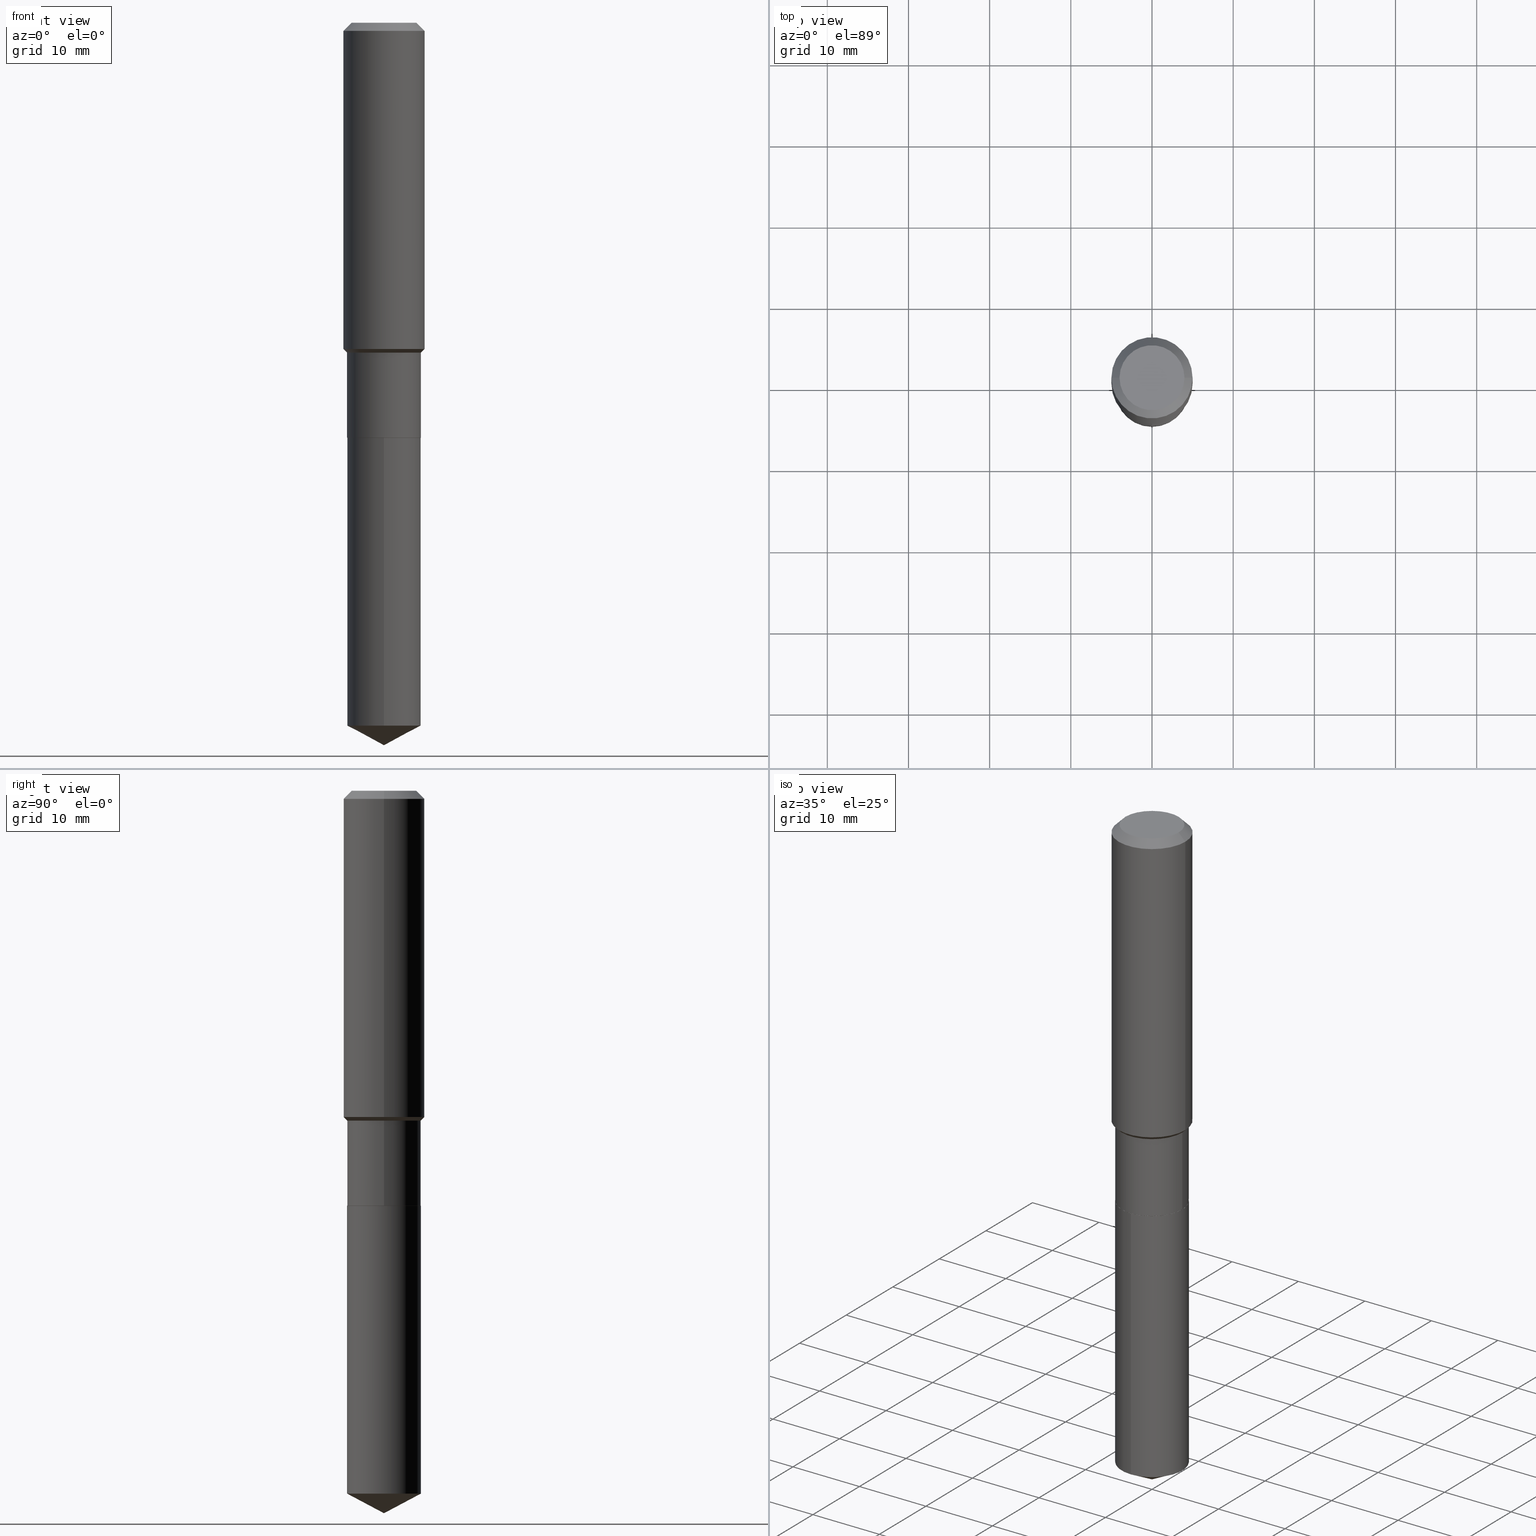
[diagram: canonical four-view strip — front | top / right | iso, engineering-drawing reading convention]
A machine part, canonical four-view strip (front | top / right | iso — engineering-drawing reading convention). The complete STEP part file that produces these views, byte-faithful:
ISO-10303-21;
HEADER;
FILE_DESCRIPTION (( 'STEP AP203' ),
    '1' );
FILE_NAME ('64661.STEP',
    '2024-04-24T18:38:48',
    ( '' ),
    ( '' ),
    'SwSTEP 2.0',
    'SolidWorks 2023',
    '' );
FILE_SCHEMA (( 'CONFIG_CONTROL_DESIGN' ));
ENDSEC;

DATA;
#1 = ORIENTED_EDGE ( 'NONE', *, *, #278, .F. ) ;
#2 = CYLINDRICAL_SURFACE ( 'NONE', #41, 0.1791500000000000314 ) ;
#3 = ORIENTED_EDGE ( 'NONE', *, *, #61, .F. ) ;
#4 = DIRECTION ( 'NONE',  ( -0.7071067811868372299, 7.493145998871401767E-15, 0.7071067811862578045 ) ) ;
#5 = CARTESIAN_POINT ( 'NONE',  ( -0.1968500000000002192, -4.125169250839980741E-15, -1.582099999999999840 ) ) ;
#6 = CIRCLE ( 'NONE', #414, 0.1968500000000002192 ) ;
#7 = AXIS2_PLACEMENT_3D ( 'NONE', #326, #462, #388 ) ;
#8 = VERTEX_POINT ( 'NONE', #206 ) ;
#9 = EDGE_CURVE ( 'NONE', #351, #185, #6, .T. ) ;
#10 = DIRECTION ( 'NONE',  ( 1.000000000000000000, -6.982962677686266711E-15, 4.876176775795935793E-29 ) ) ;
#11 = CARTESIAN_POINT ( 'NONE',  ( 3.912260996134981658E-29, -5.585671845881263700E-15, -1.599799999999999889 ) ) ;
#12 = DIRECTION ( 'NONE',  ( 0.7071067811865450192, -7.319954787623246579E-15, -0.7071067811865500152 ) ) ;
#13 = DIRECTION ( 'NONE',  ( -0.7071067811865482389, 7.493145998870357316E-15, 0.7071067811865467956 ) ) ;
#14 = AXIS2_PLACEMENT_3D ( 'NONE', #429, #324, #79 ) ;
#15 = VERTEX_POINT ( 'NONE', #245 ) ;
#16 =( GEOMETRIC_REPRESENTATION_CONTEXT ( 3 ) GLOBAL_UNCERTAINTY_ASSIGNED_CONTEXT ( ( #405 ) ) GLOBAL_UNIT_ASSIGNED_CONTEXT ( ( #35, #357, #373 ) ) REPRESENTATION_CONTEXT ( 'NONE', 'WORKASPACE' ) );
#17 = DIRECTION ( 'NONE',  ( -2.445468806185136597E-29, 3.491481338843145583E-15, 1.000000000000000000 ) ) ;
#18 = ORIENTED_EDGE ( 'NONE', *, *, #219, .T. ) ;
#19 = CARTESIAN_POINT ( 'NONE',  ( 7.068010578327116673E-29, -3.947793955047603297E-15, -2.011799999999999589 ) ) ;
#20 = LENGTH_MEASURE_WITH_UNIT ( LENGTH_MEASURE( 0.02539999999999999897 ), #253 );
#21 = ADVANCED_FACE ( 'NONE', ( #128 ), #204, .T. ) ;
#22 = CALENDAR_DATE ( 2024, 24, 4 ) ;
#23 = EDGE_CURVE ( 'NONE', #15, #421, #134, .T. ) ;
#24 = APPLICATION_PROTOCOL_DEFINITION ( 'international standard', 'config_control_design', 1994, #366 ) ;
#25 = CIRCLE ( 'NONE', #56, 0.1791500000000000592 ) ;
#26 = LOCAL_TIME ( 14, 38, 48.00000000000000000, #145 ) ;
#27 = VERTEX_POINT ( 'NONE', #322 ) ;
#28 = DIRECTION ( 'NONE',  ( 1.000000000000000000, 0.000000000000000000, 0.000000000000000000 ) ) ;
#29 = EDGE_CURVE ( 'NONE', #489, #282, #63, .T. ) ;
#30 = ORIENTED_EDGE ( 'NONE', *, *, #293, .F. ) ;
#31 = ORIENTED_EDGE ( 'NONE', *, *, #61, .T. ) ;
#32 = VECTOR ( 'NONE', #246, 39.37007874015748143 ) ;
#33 = ORIENTED_EDGE ( 'NONE', *, *, #273, .F. ) ;
#34 = DIRECTION ( 'NONE',  ( -6.982962677686269077E-15, -1.000000000000000000, 3.541896320645582562E-15 ) ) ;
#35 =( CONVERSION_BASED_UNIT ( 'INCH', #20 ) LENGTH_UNIT ( ) NAMED_UNIT ( #309 ) );
#36 = EDGE_LOOP ( 'NONE', ( #427, #196 ) ) ;
#37 = CC_DESIGN_DATE_AND_TIME_ASSIGNMENT ( #295, #215, ( #45 ) ) ;
#38 = FACE_OUTER_BOUND ( 'NONE', #270, .T. ) ;
#39 = ORIENTED_EDGE ( 'NONE', *, *, #227, .T. ) ;
#40 = EDGE_CURVE ( 'NONE', #132, #418, #356, .T. ) ;
#41 = AXIS2_PLACEMENT_3D ( 'NONE', #313, #456, #131 ) ;
#42 = DIRECTION ( 'NONE',  ( -2.445568839554977058E-29, 3.491338085363987915E-15, 1.000000000000000000 ) ) ;
#43 = DIRECTION ( 'NONE',  ( -2.445468806185136597E-29, 3.491481338843145583E-15, 1.000000000000000000 ) ) ;
#44 = PRODUCT_DEFINITION_SHAPE ( 'NONE', 'NONE',  #45 ) ;
#45 = PRODUCT_DEFINITION ( 'UNKNOWN', '', #365, #261 ) ;
#46 = CARTESIAN_POINT ( 'NONE',  ( -0.1791499999999999759, -4.312734534767044782E-15, -1.599799999999999889 ) ) ;
#47 = ORIENTED_EDGE ( 'NONE', *, *, #194, .T. ) ;
#48 = ORIENTED_EDGE ( 'NONE', *, *, #260, .T. ) ;
#49 = DIRECTION ( 'NONE',  ( 1.000000000000000000, -6.982962677686265922E-15, 4.876223630392693006E-29 ) ) ;
#50 = CARTESIAN_POINT ( 'NONE',  ( 8.335872928799957267E-29, -1.190101770539773330E-14, -3.408644255317845762 ) ) ;
#51 = ORIENTED_EDGE ( 'NONE', *, *, #227, .F. ) ;
#52 = DIRECTION ( 'NONE',  ( -2.445568839554976778E-29, 3.491338085363988309E-15, 1.000000000000000000 ) ) ;
#53 = DIRECTION ( 'NONE',  ( 1.000000000000000000, -6.982962677686269866E-15, 0.000000000000000000 ) ) ;
#54 = CALENDAR_DATE ( 2024, 24, 4 ) ;
#55 = EDGE_CURVE ( 'NONE', #185, #351, #391, .T. ) ;
#56 = AXIS2_PLACEMENT_3D ( 'NONE', #110, #153, #114 ) ;
#57 = DATE_TIME_ROLE ( 'classification_date' ) ;
#58 = PERSON_AND_ORGANIZATION ( #420, #323 ) ;
#59 = DIRECTION ( 'NONE',  ( -1.000000000000000000, 6.982962677686265922E-15, 0.000000000000000000 ) ) ;
#60 = ORIENTED_EDGE ( 'NONE', *, *, #105, .T. ) ;
#61 = EDGE_CURVE ( 'NONE', #305, #372, #392, .T. ) ;
#62 = PERSON_AND_ORGANIZATION ( #420, #323 ) ;
#63 = CIRCLE ( 'NONE', #168, 0.1791499999999999759 ) ;
#64 = CONICAL_SURFACE ( 'NONE', #481, 0.1791499999999999759, 0.7853981633974492782 ) ;
#65 = ORIENTED_EDGE ( 'NONE', *, *, #470, .F. ) ;
#66 = EDGE_LOOP ( 'NONE', ( #447, #342, #263, #201 ) ) ;
#67 = DIRECTION ( 'NONE',  ( -2.445468806185136877E-29, 3.491481338843145188E-15, 1.000000000000000000 ) ) ;
#68 = CARTESIAN_POINT ( 'NONE',  ( 0.1791500000000000314, -1.250997763707495014E-15, 8.735670693838419573E-30 ) ) ;
#69 = ORIENTED_EDGE ( 'NONE', *, *, #155, .F. ) ;
#70 = VECTOR ( 'NONE', #166, 39.37007874015748143 ) ;
#71 = VECTOR ( 'NONE', #380, 39.37007874015748143 ) ;
#72 = CC_DESIGN_PERSON_AND_ORGANIZATION_ASSIGNMENT ( #58, #179, ( #200 ) ) ;
#73 = ORIENTED_EDGE ( 'NONE', *, *, #332, .T. ) ;
#74 = FACE_OUTER_BOUND ( 'NONE', #66, .T. ) ;
#75 = DIRECTION ( 'NONE',  ( -6.165590087286826563E-15, -0.8829475928589252121, 0.4694715627858941365 ) ) ;
#76 = LINE ( 'NONE', #281, #70 ) ;
#77 = ORIENTED_EDGE ( 'NONE', *, *, #55, .F. ) ;
#78 = ADVANCED_FACE ( 'NONE', ( #163 ), #241, .T. ) ;
#79 = DIRECTION ( 'NONE',  ( 1.000000000000000000, -6.982962677686265922E-15, 0.000000000000000000 ) ) ;
#80 = DIRECTION ( 'NONE',  ( -2.445468806185136597E-29, 3.491481338843145583E-15, 1.000000000000000000 ) ) ;
#81 = ADVANCED_FACE ( 'NONE', ( #343 ), #225, .T. ) ;
#82 = DIRECTION ( 'NONE',  ( 1.000000000000000000, -6.982962677686269866E-15, 0.000000000000000000 ) ) ;
#83 = EDGE_LOOP ( 'NONE', ( #33, #455, #231, #400 ) ) ;
#84 = DIRECTION ( 'NONE',  ( -2.445468806185136597E-29, 3.491481338843145583E-15, 1.000000000000000000 ) ) ;
#85 = ORIENTED_EDGE ( 'NONE', *, *, #252, .F. ) ;
#86 = FACE_OUTER_BOUND ( 'NONE', #36, .T. ) ;
#87 = EDGE_CURVE ( 'NONE', #185, #27, #302, .T. ) ;
#88 = AXIS2_PLACEMENT_3D ( 'NONE', #50, #164, #209 ) ;
#89 = AXIS2_PLACEMENT_3D ( 'NONE', #192, #277, #318 ) ;
#90 = CYLINDRICAL_SURFACE ( 'NONE', #89, 0.1791500000000000314 ) ;
#91 = ADVANCED_FACE ( 'NONE', ( #233 ), #364, .T. ) ;
#92 = DATE_AND_TIME ( #22, #26 ) ;
#93 = DIRECTION ( 'NONE',  ( 1.000000000000000000, -6.982962677686265922E-15, 4.876223630392693006E-29 ) ) ;
#94 = ADVANCED_BREP_SHAPE_REPRESENTATION ( '64661', ( #484, #475, #135 ), #16 ) ;
#95 = VECTOR ( 'NONE', #409, 39.37007874015748143 ) ;
#96 = AXIS2_PLACEMENT_3D ( 'NONE', #423, #103, #228 ) ;
#97 = PERSON_AND_ORGANIZATION ( #420, #323 ) ;
#98 = CARTESIAN_POINT ( 'NONE',  ( 9.627810689950954155E-31, -1.374596203102556547E-16, -0.03937000000000029365 ) ) ;
#99 = PERSON_AND_ORGANIZATION ( #420, #323 ) ;
#100 = CARTESIAN_POINT ( 'NONE',  ( -0.1968500000000000250, -1.431962747903239464E-15, -0.03937000000000029365 ) ) ;
#101 = ORIENTED_EDGE ( 'NONE', *, *, #238, .T. ) ;
#102 = PERSON_AND_ORGANIZATION ( #420, #323 ) ;
#103 = DIRECTION ( 'NONE',  ( -2.445568839554976778E-29, 3.491338085363988309E-15, 1.000000000000000000 ) ) ;
#104 = CARTESIAN_POINT ( 'NONE',  ( 8.335872928799957267E-29, -1.190101770539773330E-14, -3.408644255317845762 ) ) ;
#105 = EDGE_CURVE ( 'NONE', #421, #132, #230, .T. ) ;
#106 = EDGE_LOOP ( 'NONE', ( #3, #378, #375 ) ) ;
#107 = CARTESIAN_POINT ( 'NONE',  ( 0.1968500000000001082, -1.374596203102542397E-15, 9.598753983154305062E-30 ) ) ;
#108 = VECTOR ( 'NONE', #12, 39.37007874015748143 ) ;
#109 = SECURITY_CLASSIFICATION ( '', '', #255 ) ;
#110 = CARTESIAN_POINT ( 'NONE',  ( 4.918571409880165014E-29, -7.022416416815218724E-15, -2.011299999999999866 ) ) ;
#111 = ORIENTED_EDGE ( 'NONE', *, *, #23, .F. ) ;
#112 = DIRECTION ( 'NONE',  ( -2.445568839554976778E-29, 3.491338085363988309E-15, 1.000000000000000000 ) ) ;
#113 = ADVANCED_FACE ( 'NONE', ( #124 ), #461, .F. ) ;
#114 = DIRECTION ( 'NONE',  ( 1.000000000000000000, -6.982962677686265922E-15, 0.000000000000000000 ) ) ;
#115 = ORIENTED_EDGE ( 'NONE', *, *, #360, .T. ) ;
#116 = CARTESIAN_POINT ( 'NONE',  ( -0.1968500000000000250, 1.237136582792286225E-15, -0.03937000000000029365 ) ) ;
#117 = EDGE_LOOP ( 'NONE', ( #354, #101, #73, #130 ) ) ;
#118 = CARTESIAN_POINT ( 'NONE',  ( -0.1786500000000000310, -5.754777560049219842E-15, -2.011799999999999589 ) ) ;
#119 = VECTOR ( 'NONE', #13, 39.37007874015748143 ) ;
#120 = VECTOR ( 'NONE', #184, 39.37007874015748143 ) ;
#121 = PLANE ( 'NONE',  #141 ) ;
#122 = ADVANCED_FACE ( 'NONE', ( #271 ), #458, .T. ) ;
#123 = EDGE_LOOP ( 'NONE', ( #65, #488, #316, #162 ) ) ;
#124 = FACE_OUTER_BOUND ( 'NONE', #449, .T. ) ;
#125 = DIRECTION ( 'NONE',  ( -2.438088387897960049E-29, 3.491481338843145188E-15, 1.000000000000000000 ) ) ;
#126 = PRODUCT_RELATED_PRODUCT_CATEGORY ( 'detail', '', ( #200 ) ) ;
#127 = DIRECTION ( 'NONE',  ( -2.445468806185136597E-29, 3.491481338843145583E-15, 1.000000000000000000 ) ) ;
#128 = FACE_OUTER_BOUND ( 'NONE', #83, .T. ) ;
#129 = AXIS2_PLACEMENT_3D ( 'NONE', #104, #411, #487 ) ;
#130 = ORIENTED_EDGE ( 'NONE', *, *, #40, .F. ) ;
#131 = DIRECTION ( 'NONE',  ( 1.000000000000000000, -6.982962677686267499E-15, 4.876176775795935232E-29 ) ) ;
#132 = VERTEX_POINT ( 'NONE', #419 ) ;
#133 = ADVANCED_FACE ( 'NONE', ( #275 ), #413, .T. ) ;
#134 = CIRCLE ( 'NONE', #283, 0.1786500000000000310 ) ;
#135 = AXIS2_PLACEMENT_3D ( 'NONE', #299, #408, #28 ) ;
#136 = CARTESIAN_POINT ( 'NONE',  ( 0.1791499999999999759, -6.836669609588758911E-15, -1.599799999999999889 ) ) ;
#137 = PERSON_AND_ORGANIZATION_ROLE ( 'design_supplier' ) ;
#138 = CARTESIAN_POINT ( 'NONE',  ( -0.1791499999999999759, -5.031106820234021505E-15, -1.599799999999999889 ) ) ;
#139 = APPLICATION_PROTOCOL_DEFINITION ( 'international standard', 'config_control_design', 1994, #211 ) ;
#140 = AXIS2_PLACEMENT_3D ( 'NONE', #150, #450, #183 ) ;
#141 = AXIS2_PLACEMENT_3D ( 'NONE', #19, #125, #385 ) ;
#142 = PERSON_AND_ORGANIZATION_ROLE ( 'creator' ) ;
#143 = EDGE_CURVE ( 'NONE', #146, #170, #308, .T. ) ;
#144 = FACE_OUTER_BOUND ( 'NONE', #319, .T. ) ;
#145 = COORDINATED_UNIVERSAL_TIME_OFFSET ( 5, 0, .BEHIND. ) ;
#146 = VERTEX_POINT ( 'NONE', #348 ) ;
#147 = CARTESIAN_POINT ( 'NONE',  ( -8.771341036797175977E-28, 1.252206676146346335E-13, 35.86617874015747987 ) ) ;
#148 = DIRECTION ( 'NONE',  ( -2.445568839554977058E-29, 3.491338085363987915E-15, 1.000000000000000000 ) ) ;
#149 = ADVANCED_FACE ( 'NONE', ( #74 ), #2, .T. ) ;
#150 = CARTESIAN_POINT ( 'NONE',  ( 4.919794144283257255E-29, -7.024162157484639438E-15, -2.011800000000000033 ) ) ;
#151 = APPROVAL_PERSON_ORGANIZATION ( #217, #197, #367 ) ;
#152 = LINE ( 'NONE', #68, #71 ) ;
#153 = DIRECTION ( 'NONE',  ( -2.445468806185136597E-29, 3.491481338843145583E-15, 1.000000000000000000 ) ) ;
#154 = ORIENTED_EDGE ( 'NONE', *, *, #202, .F. ) ;
#155 = EDGE_CURVE ( 'NONE', #346, #27, #428, .T. ) ;
#156 = CARTESIAN_POINT ( 'NONE',  ( 3.912260996134981658E-29, -5.585671845881263700E-15, -1.599799999999999889 ) ) ;
#157 = EDGE_LOOP ( 'NONE', ( #383, #235, #85, #325 ) ) ;
#158 = DIRECTION ( 'NONE',  ( 0.7071067811865482389, -2.468850131082264555E-15, 0.7071067811865467956 ) ) ;
#159 = DIRECTION ( 'NONE',  ( 2.445468806185136597E-29, -3.491481338843145583E-15, -1.000000000000000000 ) ) ;
#160 = CIRCLE ( 'NONE', #304, 0.1574800000000000089 ) ;
#161 = CYLINDRICAL_SURFACE ( 'NONE', #472, 0.1791500000000000314 ) ;
#162 = ORIENTED_EDGE ( 'NONE', *, *, #143, .F. ) ;
#163 = FACE_OUTER_BOUND ( 'NONE', #463, .T. ) ;
#164 = DIRECTION ( 'NONE',  ( -2.445568839554976778E-29, 3.491338085363988309E-15, 1.000000000000000000 ) ) ;
#165 = DIRECTION ( 'NONE',  ( -2.445468806185136597E-29, 3.491481338843145583E-15, 1.000000000000000000 ) ) ;
#166 = DIRECTION ( 'NONE',  ( -2.445468806185136877E-29, 3.491481338843145188E-15, 1.000000000000000000 ) ) ;
#167 = ORIENTED_EDGE ( 'NONE', *, *, #332, .F. ) ;
#168 = AXIS2_PLACEMENT_3D ( 'NONE', #11, #165, #82 ) ;
#169 = DIRECTION ( 'NONE',  ( -2.445468806185136597E-29, 3.491481338843145583E-15, 1.000000000000000000 ) ) ;
#170 = VERTEX_POINT ( 'NONE', #100 ) ;
#171 = FACE_OUTER_BOUND ( 'NONE', #247, .T. ) ;
#172 = CARTESIAN_POINT ( 'NONE',  ( 0.000000000000000000, 0.000000000000000000, 0.000000000000000000 ) ) ;
#173 = AXIS2_PLACEMENT_3D ( 'NONE', #454, #112, #34 ) ;
#174 = CIRCLE ( 'NONE', #96, 0.1791500000000000314 ) ;
#175 = APPROVAL_DATE_TIME ( #333, #205 ) ;
#176 = APPROVAL_DATE_TIME ( #220, #197 ) ;
#177 = AXIS2_PLACEMENT_3D ( 'NONE', #424, #486, #350 ) ;
#178 = CONICAL_SURFACE ( 'NONE', #371, 74.04434902938308483, 1.082104136236484049 ) ;
#179 = PERSON_AND_ORGANIZATION_ROLE ( 'design_owner' ) ;
#180 = APPROVAL_STATUS ( 'not_yet_approved' ) ;
#181 = DIRECTION ( 'NONE',  ( -2.445468806185136597E-29, 3.491481338843145583E-15, 1.000000000000000000 ) ) ;
#182 = ORIENTED_EDGE ( 'NONE', *, *, #395, .T. ) ;
#183 = DIRECTION ( 'NONE',  ( 6.982962677686265922E-15, 1.000000000000000000, -3.491338085363987915E-15 ) ) ;
#184 = DIRECTION ( 'NONE',  ( 0.7071067811868372299, -2.468850131085291414E-15, 0.7071067811862578045 ) ) ;
#185 = VERTEX_POINT ( 'NONE', #345 ) ;
#186 = DIRECTION ( 'NONE',  ( 1.000000000000000000, -6.982962677686263555E-15, 0.000000000000000000 ) ) ;
#187 = VECTOR ( 'NONE', #191, 39.37007874015748143 ) ;
#188 = CIRCLE ( 'NONE', #199, 0.1968500000000000250 ) ;
#189 = CARTESIAN_POINT ( 'NONE',  ( 0.1574800000000000089, -1.284169937930321189E-15, 3.855188123724205385E-18 ) ) ;
#190 = ORIENTED_EDGE ( 'NONE', *, *, #293, .T. ) ;
#191 = DIRECTION ( 'NONE',  ( -0.7071067811865450192, 2.468850131082230634E-15, -0.7071067811865500152 ) ) ;
#192 = CARTESIAN_POINT ( 'NONE',  ( 4.919794144283257255E-29, -7.024162157484639438E-15, -2.011800000000000033 ) ) ;
#193 = VERTEX_POINT ( 'NONE', #311 ) ;
#194 = EDGE_CURVE ( 'NONE', #8, #372, #381, .T. ) ;
#195 = DIRECTION ( 'NONE',  ( 1.000000000000000000, -6.982962677686269866E-15, 0.000000000000000000 ) ) ;
#196 = ORIENTED_EDGE ( 'NONE', *, *, #470, .T. ) ;
#197 = APPROVAL ( #259, 'UNSPECIFIED' ) ;
#198 = AXIS2_PLACEMENT_3D ( 'NONE', #98, #337, #59 ) ;
#199 = AXIS2_PLACEMENT_3D ( 'NONE', #236, #329, #438 ) ;
#200 = PRODUCT ( '64661', '64661', '', ( #444 ) ) ;
#201 = ORIENTED_EDGE ( 'NONE', *, *, #395, .F. ) ;
#202 = EDGE_CURVE ( 'NONE', #372, #193, #265, .T. ) ;
#203 = LINE ( 'NONE', #467, #296 ) ;
#204 = CYLINDRICAL_SURFACE ( 'NONE', #291, 0.1968500000000001082 ) ;
#205 = APPROVAL ( #180, 'UNSPECIFIED' ) ;
#206 = CARTESIAN_POINT ( 'NONE',  ( -1.250997763707411198E-15, -0.1791500000000119386, -3.408644255317845317 ) ) ;
#207 = CARTESIAN_POINT ( 'NONE',  ( 1.272937311114302931E-15, 0.1791499999999880965, -3.408644255317846206 ) ) ;
#208 = CIRCLE ( 'NONE', #474, 0.1791500000000000314 ) ;
#209 = DIRECTION ( 'NONE',  ( -6.982962677686265133E-15, -1.000000000000000000, 3.049788438363675772E-15 ) ) ;
#210 = ORIENTED_EDGE ( 'NONE', *, *, #387, .T. ) ;
#211 = APPLICATION_CONTEXT ( 'configuration controlled 3d designs of mechanical parts and assemblies' ) ;
#212 = CARTESIAN_POINT ( 'NONE',  ( -1.250997763707445513E-15, -0.1791500000000070536, -2.011799999999999145 ) ) ;
#213 = DIRECTION ( 'NONE',  ( -2.445468806185136597E-29, 3.491481338843145583E-15, 1.000000000000000000 ) ) ;
#214 = CC_DESIGN_PERSON_AND_ORGANIZATION_ASSIGNMENT ( #99, #368, ( #109 ) ) ;
#215 = DATE_TIME_ROLE ( 'creation_date' ) ;
#216 = CC_DESIGN_SECURITY_CLASSIFICATION ( #109, ( #365 ) ) ;
#217 = PERSON_AND_ORGANIZATION ( #420, #323 ) ;
#218 = DIRECTION ( 'NONE',  ( -2.445468806185136597E-29, 3.491481338843145583E-15, 1.000000000000000000 ) ) ;
#219 = EDGE_CURVE ( 'NONE', #418, #132, #25, .T. ) ;
#220 = DATE_AND_TIME ( #479, #433 ) ;
#221 = CC_DESIGN_PERSON_AND_ORGANIZATION_ASSIGNMENT ( #476, #142, ( #45 ) ) ;
#222 = APPROVAL_STATUS ( 'not_yet_approved' ) ;
#223 = ORIENTED_EDGE ( 'NONE', *, *, #219, .F. ) ;
#224 = CONICAL_SURFACE ( 'NONE', #198, 0.1968500000000000250, 0.7853981633974447263 ) ;
#225 = CYLINDRICAL_SURFACE ( 'NONE', #177, 0.1791500000000000314 ) ;
#226 = DATE_AND_TIME ( #410, #393 ) ;
#227 = EDGE_CURVE ( 'NONE', #282, #351, #315, .T. ) ;
#228 = DIRECTION ( 'NONE',  ( -6.982962677686265133E-15, -1.000000000000000000, 3.049788438363675772E-15 ) ) ;
#229 = ORIENTED_EDGE ( 'NONE', *, *, #202, .T. ) ;
#230 = LINE ( 'NONE', #118, #451 ) ;
#231 = ORIENTED_EDGE ( 'NONE', *, *, #87, .T. ) ;
#232 = ORIENTED_EDGE ( 'NONE', *, *, #242, .T. ) ;
#233 = FACE_OUTER_BOUND ( 'NONE', #123, .T. ) ;
#234 = CIRCLE ( 'NONE', #14, 0.1968500000000000250 ) ;
#235 = ORIENTED_EDGE ( 'NONE', *, *, #273, .T. ) ;
#236 = CARTESIAN_POINT ( 'NONE',  ( 9.627810689950954155E-31, -1.374596203102556547E-16, -0.03937000000000029365 ) ) ;
#237 = DIRECTION ( 'NONE',  ( -2.445468806185136597E-29, 3.491481338843145583E-15, 1.000000000000000000 ) ) ;
#238 = EDGE_CURVE ( 'NONE', #421, #15, #465, .T. ) ;
#239 = DIRECTION ( 'NONE',  ( 1.000000000000000000, -6.982962677686265922E-15, 0.000000000000000000 ) ) ;
#240 = CARTESIAN_POINT ( 'NONE',  ( 0.1968500000000000250, -1.487948651171581601E-15, -0.03937000000000029365 ) ) ;
#241 = CONICAL_SURFACE ( 'NONE', #471, 0.1786500000000000310, 0.7853981633978580623 ) ;
#242 = EDGE_CURVE ( 'NONE', #132, #282, #244, .T. ) ;
#243 = VECTOR ( 'NONE', #75, 39.37007874015748854 ) ;
#244 = LINE ( 'NONE', #426, #32 ) ;
#245 = CARTESIAN_POINT ( 'NONE',  ( 0.1786500000000000310, -8.271668439853290854E-15, -2.011799999999999589 ) ) ;
#246 = DIRECTION ( 'NONE',  ( -2.445468806185136877E-29, 3.491481338843145188E-15, 1.000000000000000000 ) ) ;
#247 = EDGE_LOOP ( 'NONE', ( #51, #182, #210, #320 ) ) ;
#248 = CARTESIAN_POINT ( 'NONE',  ( 4.919794144283257255E-29, -7.024162157484639438E-15, -2.011800000000000033 ) ) ;
#249 = DIRECTION ( 'NONE',  ( -2.445468806185136597E-29, 3.491481338843145583E-15, 1.000000000000000000 ) ) ;
#250 = PLANE ( 'NONE',  #7 ) ;
#251 = LOCAL_TIME ( 14, 38, 48.00000000000000000, #254 ) ;
#252 = EDGE_CURVE ( 'NONE', #27, #170, #234, .T. ) ;
#253 =( LENGTH_UNIT ( ) NAMED_UNIT ( * ) SI_UNIT ( $, .METRE. ) );
#254 = COORDINATED_UNIVERSAL_TIME_OFFSET ( 5, 0, .BEHIND. ) ;
#255 = SECURITY_CLASSIFICATION_LEVEL ( 'unclassified' ) ;
#256 = AXIS2_PLACEMENT_3D ( 'NONE', #321, #169, #398 ) ;
#257 = FACE_OUTER_BOUND ( 'NONE', #468, .T. ) ;
#258 = CIRCLE ( 'NONE', #284, 0.1791499999999999759 ) ;
#259 = APPROVAL_STATUS ( 'not_yet_approved' ) ;
#260 = EDGE_CURVE ( 'NONE', #8, #464, #203, .T. ) ;
#261 = DESIGN_CONTEXT ( 'detailed design', #366, 'design' ) ;
#262 = EDGE_CURVE ( 'NONE', #372, #8, #317, .T. ) ;
#263 = ORIENTED_EDGE ( 'NONE', *, *, #339, .T. ) ;
#264 = AXIS2_PLACEMENT_3D ( 'NONE', #384, #379, #490 ) ;
#265 = LINE ( 'NONE', #340, #303 ) ;
#266 = CC_DESIGN_APPROVAL ( #205, ( #45 ) ) ;
#267 = ORIENTED_EDGE ( 'NONE', *, *, #29, .F. ) ;
#268 = DIRECTION ( 'NONE',  ( -1.000000000000000000, 6.982962677686265922E-15, 0.000000000000000000 ) ) ;
#269 = DIRECTION ( 'NONE',  ( -6.982962677686269077E-15, -1.000000000000000000, 3.541896320645582562E-15 ) ) ;
#270 = EDGE_LOOP ( 'NONE', ( #154, #485, #48, #30 ) ) ;
#271 = FACE_OUTER_BOUND ( 'NONE', #106, .T. ) ;
#272 = EDGE_LOOP ( 'NONE', ( #434, #39, #77, #412 ) ) ;
#273 = EDGE_CURVE ( 'NONE', #351, #170, #76, .T. ) ;
#274 = ORIENTED_EDGE ( 'NONE', *, *, #194, .F. ) ;
#275 = FACE_OUTER_BOUND ( 'NONE', #117, .T. ) ;
#276 = CC_DESIGN_APPROVAL ( #197, ( #109 ) ) ;
#277 = DIRECTION ( 'NONE',  ( -2.445568839554976778E-29, 3.491338085363988309E-15, 1.000000000000000000 ) ) ;
#278 = EDGE_CURVE ( 'NONE', #146, #346, #370, .T. ) ;
#279 = ORIENTED_EDGE ( 'NONE', *, *, #446, .F. ) ;
#280 = CARTESIAN_POINT ( 'NONE',  ( 4.918571409880165014E-29, -7.022416416815218724E-15, -2.011299999999999866 ) ) ;
#281 = CARTESIAN_POINT ( 'NONE',  ( -0.1968500000000001082, 1.398703375343757985E-15, -9.682923725166787881E-30 ) ) ;
#282 = VERTEX_POINT ( 'NONE', #138 ) ;
#283 = AXIS2_PLACEMENT_3D ( 'NONE', #389, #127, #437 ) ;
#284 = AXIS2_PLACEMENT_3D ( 'NONE', #314, #292, #457 ) ;
#285 = CARTESIAN_POINT ( 'NONE',  ( 0.000000000000000000, 0.000000000000000000, 0.000000000000000000 ) ) ;
#286 = CARTESIAN_POINT ( 'NONE',  ( 3.912260996134981658E-29, -5.585671845881263700E-15, -1.599799999999999889 ) ) ;
#287 = DIRECTION ( 'NONE',  ( 1.000000000000000000, -6.982962677686265922E-15, 0.000000000000000000 ) ) ;
#288 = LINE ( 'NONE', #290, #243 ) ;
#289 = ADVANCED_FACE ( 'NONE', ( #257 ), #224, .T. ) ;
#290 = CARTESIAN_POINT ( 'NONE',  ( 8.568626162649794142E-29, -1.223387591200561403E-14, -3.503899999999999793 ) ) ;
#291 = AXIS2_PLACEMENT_3D ( 'NONE', #285, #43, #10 ) ;
#292 = DIRECTION ( 'NONE',  ( -2.445468806185136597E-29, 3.491481338843145583E-15, 1.000000000000000000 ) ) ;
#293 = EDGE_CURVE ( 'NONE', #193, #464, #174, .T. ) ;
#294 = APPROVAL_ROLE ( '' ) ;
#295 = DATE_AND_TIME ( #54, #415 ) ;
#296 = VECTOR ( 'NONE', #42, 39.37007874015748143 ) ;
#297 = ADVANCED_FACE ( 'NONE', ( #374 ), #298, .T. ) ;
#298 = CYLINDRICAL_SURFACE ( 'NONE', #441, 0.1968500000000001082 ) ;
#299 = CARTESIAN_POINT ( 'NONE',  ( 0.000000000000000000, 0.000000000000000000, 0.000000000000000000 ) ) ;
#300 = CC_DESIGN_PERSON_AND_ORGANIZATION_ASSIGNMENT ( #62, #137, ( #365 ) ) ;
#301 = ORIENTED_EDGE ( 'NONE', *, *, #369, .F. ) ;
#302 = LINE ( 'NONE', #107, #341 ) ;
#303 = VECTOR ( 'NONE', #148, 39.37007874015748143 ) ;
#304 = AXIS2_PLACEMENT_3D ( 'NONE', #469, #84, #49 ) ;
#305 = VERTEX_POINT ( 'NONE', #482 ) ;
#306 = CARTESIAN_POINT ( 'NONE',  ( 9.627810689950954155E-31, -1.374596203102556547E-16, -0.03937000000000029365 ) ) ;
#307 = CARTESIAN_POINT ( 'NONE',  ( 0.000000000000000000, 0.000000000000000000, 0.000000000000000000 ) ) ;
#308 = LINE ( 'NONE', #116, #187 ) ;
#309 = DIMENSIONAL_EXPONENTS ( 1.000000000000000000, 0.000000000000000000, 0.000000000000000000, 0.000000000000000000, 0.000000000000000000, 0.000000000000000000, 0.000000000000000000 ) ;
#310 = DIRECTION ( 'NONE',  ( 1.000000000000000000, -6.982962677686266711E-15, 4.876176775795935793E-29 ) ) ;
#311 = CARTESIAN_POINT ( 'NONE',  ( 1.272937311114303128E-15, 0.1791499999999929815, -2.011800000000000477 ) ) ;
#312 = EDGE_LOOP ( 'NONE', ( #47, #229, #279, #349 ) ) ;
#313 = CARTESIAN_POINT ( 'NONE',  ( 0.000000000000000000, 0.000000000000000000, 0.000000000000000000 ) ) ;
#314 = CARTESIAN_POINT ( 'NONE',  ( 3.912260996134981658E-29, -5.585671845881263700E-15, -1.599799999999999889 ) ) ;
#315 = LINE ( 'NONE', #46, #119 ) ;
#316 = ORIENTED_EDGE ( 'NONE', *, *, #252, .T. ) ;
#317 = CIRCLE ( 'NONE', #88, 0.1791500000000000314 ) ;
#318 = DIRECTION ( 'NONE',  ( -6.982962677686265133E-15, -1.000000000000000000, 3.049788438363675772E-15 ) ) ;
#319 = EDGE_LOOP ( 'NONE', ( #301, #31, #274 ) ) ;
#320 = ORIENTED_EDGE ( 'NONE', *, *, #9, .F. ) ;
#321 = CARTESIAN_POINT ( 'NONE',  ( 4.919794144283256694E-29, -7.024162157484638649E-15, -2.011799999999999589 ) ) ;
#322 = CARTESIAN_POINT ( 'NONE',  ( 0.1968500000000000250, -1.512055823412797189E-15, -0.03937000000000029365 ) ) ;
#323 = ORGANIZATION ( 'UNSPECIFIED', 'UNSPECIFIED', '' ) ;
#324 = DIRECTION ( 'NONE',  ( -2.445468806185136597E-29, 3.491481338843145583E-15, 1.000000000000000000 ) ) ;
#325 = ORIENTED_EDGE ( 'NONE', *, *, #87, .F. ) ;
#326 = CARTESIAN_POINT ( 'NONE',  ( -4.713871149261283817E-47, 6.730158695841841775E-33, 1.927594061857935365E-18 ) ) ;
#327 = DIRECTION ( 'NONE',  ( -6.982962677686265133E-15, -1.000000000000000000, 3.049788438363675772E-15 ) ) ;
#328 = ADVANCED_FACE ( 'NONE', ( #144 ), #178, .T. ) ;
#329 = DIRECTION ( 'NONE',  ( -2.445468806185136597E-29, 3.491481338843145583E-15, 1.000000000000000000 ) ) ;
#330 = CLOSED_SHELL ( 'NONE', ( #81, #328, #122, #442, #113 ) ) ;
#331 = CC_DESIGN_APPROVAL ( #480, ( #365 ) ) ;
#332 = EDGE_CURVE ( 'NONE', #15, #418, #417, .T. ) ;
#333 = DATE_AND_TIME ( #338, #251 ) ;
#334 = COORDINATED_UNIVERSAL_TIME_OFFSET ( 5, 0, .BEHIND. ) ;
#335 = SHAPE_DEFINITION_REPRESENTATION ( #44, #94 ) ;
#336 = CLOSED_SHELL ( 'NONE', ( #78, #91, #297, #347, #390, #149, #478, #21, #289, #376, #439, #133 ) ) ;
#337 = DIRECTION ( 'NONE',  ( 2.445468806185136597E-29, -3.491481338843145583E-15, -1.000000000000000000 ) ) ;
#338 = CALENDAR_DATE ( 2024, 24, 4 ) ;
#339 = EDGE_CURVE ( 'NONE', #418, #489, #152, .T. ) ;
#340 = CARTESIAN_POINT ( 'NONE',  ( 1.272937311114268616E-15, 0.1791499999999929815, -2.011800000000000477 ) ) ;
#341 = VECTOR ( 'NONE', #67, 39.37007874015748143 ) ;
#342 = ORIENTED_EDGE ( 'NONE', *, *, #40, .T. ) ;
#343 = FACE_OUTER_BOUND ( 'NONE', #312, .T. ) ;
#344 = FACE_OUTER_BOUND ( 'NONE', #272, .T. ) ;
#345 = CARTESIAN_POINT ( 'NONE',  ( 0.1968500000000002192, -6.898468829286282504E-15, -1.582099999999999840 ) ) ;
#346 = VERTEX_POINT ( 'NONE', #189 ) ;
#347 = ADVANCED_FACE ( 'NONE', ( #344 ), #452, .T. ) ;
#348 = CARTESIAN_POINT ( 'NONE',  ( -0.1574800000000000089, 1.168406772637159618E-15, 3.855188123707939751E-18 ) ) ;
#349 = ORIENTED_EDGE ( 'NONE', *, *, #260, .F. ) ;
#350 = DIRECTION ( 'NONE',  ( -6.982962677686265133E-15, -1.000000000000000000, 3.049788438363675772E-15 ) ) ;
#351 = VERTEX_POINT ( 'NONE', #5 ) ;
#352 = CC_DESIGN_DATE_AND_TIME_ASSIGNMENT ( #226, #57, ( #109 ) ) ;
#353 = CARTESIAN_POINT ( 'NONE',  ( 8.569032186316296847E-29, -1.223329951730687886E-14, -3.503899999999999793 ) ) ;
#354 = ORIENTED_EDGE ( 'NONE', *, *, #105, .F. ) ;
#355 = ORIENTED_EDGE ( 'NONE', *, *, #446, .T. ) ;
#356 = CIRCLE ( 'NONE', #445, 0.1791500000000000592 ) ;
#357 =( NAMED_UNIT ( * ) PLANE_ANGLE_UNIT ( ) SI_UNIT ( $, .RADIAN. ) );
#358 = APPROVAL_PERSON_ORGANIZATION ( #483, #480, #294 ) ;
#359 = ORIENTED_EDGE ( 'NONE', *, *, #339, .F. ) ;
#360 = EDGE_CURVE ( 'NONE', #170, #27, #188, .T. ) ;
#361 = DIRECTION ( 'NONE',  ( -2.445468806185136597E-29, 3.491481338843145583E-15, 1.000000000000000000 ) ) ;
#362 = FACE_OUTER_BOUND ( 'NONE', #460, .T. ) ;
#363 = PERSON_AND_ORGANIZATION_ROLE ( 'creator' ) ;
#364 = CONICAL_SURFACE ( 'NONE', #431, 0.1968500000000000250, 0.7853981633974447263 ) ;
#365 = PRODUCT_DEFINITION_FORMATION_WITH_SPECIFIED_SOURCE ( 'ANY', '', #200, .NOT_KNOWN. ) ;
#366 = APPLICATION_CONTEXT ( 'configuration controlled 3d designs of mechanical parts and assemblies' ) ;
#367 = APPROVAL_ROLE ( '' ) ;
#368 = PERSON_AND_ORGANIZATION_ROLE ( 'classification_officer' ) ;
#369 = EDGE_CURVE ( 'NONE', #305, #8, #288, .T. ) ;
#370 = CIRCLE ( 'NONE', #407, 0.1574800000000000089 ) ;
#371 = AXIS2_PLACEMENT_3D ( 'NONE', #147, #453, #269 ) ;
#372 = VERTEX_POINT ( 'NONE', #207 ) ;
#373 =( NAMED_UNIT ( * ) SI_UNIT ( $, .STERADIAN. ) SOLID_ANGLE_UNIT ( ) );
#374 = FACE_OUTER_BOUND ( 'NONE', #157, .T. ) ;
#375 = ORIENTED_EDGE ( 'NONE', *, *, #262, .F. ) ;
#376 = ADVANCED_FACE ( 'NONE', ( #86 ), #250, .F. ) ;
#377 = CARTESIAN_POINT ( 'NONE',  ( 0.1786500000000000310, -8.271668439853290854E-15, -2.011799999999999589 ) ) ;
#378 = ORIENTED_EDGE ( 'NONE', *, *, #369, .T. ) ;
#379 = DIRECTION ( 'NONE',  ( -2.445468806185136597E-29, 3.491481338843145583E-15, 1.000000000000000000 ) ) ;
#380 = DIRECTION ( 'NONE',  ( -2.445468806185136877E-29, 3.491481338843145188E-15, 1.000000000000000000 ) ) ;
#381 = CIRCLE ( 'NONE', #129, 0.1791500000000000314 ) ;
#382 = AXIS2_PLACEMENT_3D ( 'NONE', #156, #361, #53 ) ;
#383 = ORIENTED_EDGE ( 'NONE', *, *, #55, .T. ) ;
#384 = CARTESIAN_POINT ( 'NONE',  ( 4.919794144283256694E-29, -7.024162157484638649E-15, -2.011799999999999589 ) ) ;
#385 = DIRECTION ( 'NONE',  ( 1.000000000000000000, -6.982962677686265922E-15, 4.876176775795935793E-29 ) ) ;
#386 = ORIENTED_EDGE ( 'NONE', *, *, #23, .T. ) ;
#387 = EDGE_CURVE ( 'NONE', #489, #185, #425, .T. ) ;
#388 = DIRECTION ( 'NONE',  ( -1.000000000000000000, 6.982962677686265922E-15, -4.876176775795935793E-29 ) ) ;
#389 = CARTESIAN_POINT ( 'NONE',  ( 4.919794144283256694E-29, -7.024162157484638649E-15, -2.011799999999999589 ) ) ;
#390 = ADVANCED_FACE ( 'NONE', ( #435 ), #161, .T. ) ;
#391 = CIRCLE ( 'NONE', #401, 0.1968500000000002192 ) ;
#392 = LINE ( 'NONE', #353, #95 ) ;
#393 = LOCAL_TIME ( 14, 38, 48.00000000000000000, #406 ) ;
#394 = ORIENTED_EDGE ( 'NONE', *, *, #238, .F. ) ;
#395 = EDGE_CURVE ( 'NONE', #282, #489, #258, .T. ) ;
#396 = EDGE_LOOP ( 'NONE', ( #18, #232, #267, #359 ) ) ;
#397 = DIRECTION ( 'NONE',  ( 1.000000000000000000, -6.982962677686267499E-15, 4.876176775795935232E-29 ) ) ;
#398 = DIRECTION ( 'NONE',  ( 1.000000000000000000, -6.982962677686263555E-15, 0.000000000000000000 ) ) ;
#399 = CC_DESIGN_PERSON_AND_ORGANIZATION_ASSIGNMENT ( #102, #363, ( #365 ) ) ;
#400 = ORIENTED_EDGE ( 'NONE', *, *, #360, .F. ) ;
#401 = AXIS2_PLACEMENT_3D ( 'NONE', #466, #80, #239 ) ;
#402 = CARTESIAN_POINT ( 'NONE',  ( 0.1791499999999999759, -6.836669609588758911E-15, -1.599799999999999889 ) ) ;
#403 = APPROVAL_PERSON_ORGANIZATION ( #97, #205, #443 ) ;
#404 = COORDINATED_UNIVERSAL_TIME_OFFSET ( 5, 0, .BEHIND. ) ;
#405 = UNCERTAINTY_MEASURE_WITH_UNIT (LENGTH_MEASURE( 1.000000000000000082E-05 ), #35, 'distance_accuracy_value', 'NONE');
#406 = COORDINATED_UNIVERSAL_TIME_OFFSET ( 5, 0, .BEHIND. ) ;
#407 = AXIS2_PLACEMENT_3D ( 'NONE', #477, #218, #93 ) ;
#408 = DIRECTION ( 'NONE',  ( 0.000000000000000000, 0.000000000000000000, 1.000000000000000000 ) ) ;
#409 = DIRECTION ( 'NONE',  ( 6.273719981627756610E-15, 0.8829475928589284317, 0.4694715627858879192 ) ) ;
#410 = CALENDAR_DATE ( 2024, 24, 4 ) ;
#411 = DIRECTION ( 'NONE',  ( -2.445568839554976778E-29, 3.491338085363988309E-15, 1.000000000000000000 ) ) ;
#412 = ORIENTED_EDGE ( 'NONE', *, *, #387, .F. ) ;
#413 = CONICAL_SURFACE ( 'NONE', #264, 0.1786500000000000310, 0.7853981633978580623 ) ;
#414 = AXIS2_PLACEMENT_3D ( 'NONE', #432, #237, #287 ) ;
#415 = LOCAL_TIME ( 14, 38, 48.00000000000000000, #404 ) ;
#416 = ORIENTED_EDGE ( 'NONE', *, *, #143, .T. ) ;
#417 = LINE ( 'NONE', #377, #120 ) ;
#418 = VERTEX_POINT ( 'NONE', #473 ) ;
#419 = CARTESIAN_POINT ( 'NONE',  ( -0.1791500000000000592, -5.031106820234021505E-15, -2.011299999999999866 ) ) ;
#420 = PERSON ( 'UNSPECIFIED', 'UNSPECIFIED', 'UNSPECIFIED', ('UNSPECIFIED'), ('UNSPECIFIED'), ('UNSPECIFIED') ) ;
#421 = VERTEX_POINT ( 'NONE', #440 ) ;
#422 = DIRECTION ( 'NONE',  ( -2.445468806185136597E-29, 3.491481338843145583E-15, 1.000000000000000000 ) ) ;
#423 = CARTESIAN_POINT ( 'NONE',  ( 4.919794144283257255E-29, -7.024162157484639438E-15, -2.011800000000000033 ) ) ;
#424 = CARTESIAN_POINT ( 'NONE',  ( 4.919794144283257255E-29, -7.024162157484639438E-15, -2.011800000000000033 ) ) ;
#425 = LINE ( 'NONE', #402, #459 ) ;
#426 = CARTESIAN_POINT ( 'NONE',  ( -0.1791500000000000314, 1.272937311114219706E-15, -8.812272214191663486E-30 ) ) ;
#427 = ORIENTED_EDGE ( 'NONE', *, *, #278, .T. ) ;
#428 = LINE ( 'NONE', #240, #108 ) ;
#429 = CARTESIAN_POINT ( 'NONE',  ( 9.627810689950954155E-31, -1.374596203102556547E-16, -0.03937000000000029365 ) ) ;
#430 = DIRECTION ( 'NONE',  ( 1.000000000000000000, -6.982962677686265922E-15, 0.000000000000000000 ) ) ;
#431 = AXIS2_PLACEMENT_3D ( 'NONE', #306, #159, #268 ) ;
#432 = CARTESIAN_POINT ( 'NONE',  ( 3.868976198265503885E-29, -5.523872626183740107E-15, -1.582099999999999840 ) ) ;
#433 = LOCAL_TIME ( 14, 38, 48.00000000000000000, #334 ) ;
#434 = ORIENTED_EDGE ( 'NONE', *, *, #29, .T. ) ;
#435 = FACE_OUTER_BOUND ( 'NONE', #396, .T. ) ;
#436 = CARTESIAN_POINT ( 'NONE',  ( 4.919794144283256694E-29, -7.024162157484638649E-15, -2.011799999999999589 ) ) ;
#437 = DIRECTION ( 'NONE',  ( 1.000000000000000000, -6.982962677686263555E-15, 0.000000000000000000 ) ) ;
#438 = DIRECTION ( 'NONE',  ( 1.000000000000000000, -6.982962677686265922E-15, 0.000000000000000000 ) ) ;
#439 = ADVANCED_FACE ( 'NONE', ( #362 ), #121, .F. ) ;
#440 = CARTESIAN_POINT ( 'NONE',  ( -0.1786500000000000310, -5.752128332875109429E-15, -2.011799999999999589 ) ) ;
#441 = AXIS2_PLACEMENT_3D ( 'NONE', #307, #181, #310 ) ;
#442 = ADVANCED_FACE ( 'NONE', ( #38 ), #90, .T. ) ;
#443 = APPROVAL_ROLE ( '' ) ;
#444 = MECHANICAL_CONTEXT ( 'NONE', #211, 'mechanical' ) ;
#445 = AXIS2_PLACEMENT_3D ( 'NONE', #280, #249, #430 ) ;
#446 = EDGE_CURVE ( 'NONE', #464, #193, #208, .T. ) ;
#447 = ORIENTED_EDGE ( 'NONE', *, *, #242, .F. ) ;
#448 = APPROVAL_DATE_TIME ( #92, #480 ) ;
#449 = EDGE_LOOP ( 'NONE', ( #355, #190 ) ) ;
#450 = DIRECTION ( 'NONE',  ( 2.445568839554977058E-29, -3.491338085363987915E-15, -1.000000000000000000 ) ) ;
#451 = VECTOR ( 'NONE', #4, 39.37007874015748143 ) ;
#452 = CONICAL_SURFACE ( 'NONE', #382, 0.1791499999999999759, 0.7853981633974492782 ) ;
#453 = DIRECTION ( 'NONE',  ( -2.445568839554976778E-29, 3.491338085363988309E-15, 1.000000000000000000 ) ) ;
#454 = CARTESIAN_POINT ( 'NONE',  ( -8.771341036797175977E-28, 1.252206676146346335E-13, 35.86617874015747987 ) ) ;
#455 = ORIENTED_EDGE ( 'NONE', *, *, #9, .T. ) ;
#456 = DIRECTION ( 'NONE',  ( -2.445468806185136597E-29, 3.491481338843145583E-15, 1.000000000000000000 ) ) ;
#457 = DIRECTION ( 'NONE',  ( 1.000000000000000000, -6.982962677686269866E-15, 0.000000000000000000 ) ) ;
#458 = CONICAL_SURFACE ( 'NONE', #173, 74.04434902938308483, 1.082104136236484049 ) ;
#459 = VECTOR ( 'NONE', #158, 39.37007874015748143 ) ;
#460 = EDGE_LOOP ( 'NONE', ( #111, #394 ) ) ;
#461 = PLANE ( 'NONE',  #140 ) ;
#462 = DIRECTION ( 'NONE',  ( 2.438088387897960049E-29, -3.491481338843145188E-15, -1.000000000000000000 ) ) ;
#463 = EDGE_LOOP ( 'NONE', ( #386, #60, #223, #167 ) ) ;
#464 = VERTEX_POINT ( 'NONE', #212 ) ;
#465 = CIRCLE ( 'NONE', #256, 0.1786500000000000310 ) ;
#466 = CARTESIAN_POINT ( 'NONE',  ( 3.868976198265503885E-29, -5.523872626183740107E-15, -1.582099999999999840 ) ) ;
#467 = CARTESIAN_POINT ( 'NONE',  ( -1.250997763707445513E-15, -0.1791500000000070536, -2.011799999999999145 ) ) ;
#468 = EDGE_LOOP ( 'NONE', ( #69, #1, #416, #115 ) ) ;
#469 = CARTESIAN_POINT ( 'NONE',  ( -9.427742298522567634E-47, 1.346031739168368355E-32, 3.855188123715870730E-18 ) ) ;
#470 = EDGE_CURVE ( 'NONE', #346, #146, #160, .T. ) ;
#471 = AXIS2_PLACEMENT_3D ( 'NONE', #436, #422, #186 ) ;
#472 = AXIS2_PLACEMENT_3D ( 'NONE', #172, #17, #397 ) ;
#473 = CARTESIAN_POINT ( 'NONE',  ( 0.1791500000000000592, -8.273414180522713146E-15, -2.011299999999999866 ) ) ;
#474 = AXIS2_PLACEMENT_3D ( 'NONE', #248, #52, #327 ) ;
#475 = MANIFOLD_SOLID_BREP ( 'Body-Move/Copy2[2]', #336 ) ;
#476 = PERSON_AND_ORGANIZATION ( #420, #323 ) ;
#477 = CARTESIAN_POINT ( 'NONE',  ( -9.427742298522567634E-47, 1.346031739168368355E-32, 3.855188123715870730E-18 ) ) ;
#478 = ADVANCED_FACE ( 'NONE', ( #171 ), #64, .T. ) ;
#479 = CALENDAR_DATE ( 2024, 24, 4 ) ;
#480 = APPROVAL ( #222, 'UNSPECIFIED' ) ;
#481 = AXIS2_PLACEMENT_3D ( 'NONE', #286, #213, #195 ) ;
#482 = CARTESIAN_POINT ( 'NONE',  ( 8.569028656916683771E-29, -1.223329951730687886E-14, -3.503899999999999793 ) ) ;
#483 = PERSON_AND_ORGANIZATION ( #420, #323 ) ;
#484 = MANIFOLD_SOLID_BREP ( 'Body-Move/Copy2[1]', #330 ) ;
#485 = ORIENTED_EDGE ( 'NONE', *, *, #262, .T. ) ;
#486 = DIRECTION ( 'NONE',  ( -2.445568839554976778E-29, 3.491338085363988309E-15, 1.000000000000000000 ) ) ;
#487 = DIRECTION ( 'NONE',  ( -6.982962677686265133E-15, -1.000000000000000000, 3.049788438363675772E-15 ) ) ;
#488 = ORIENTED_EDGE ( 'NONE', *, *, #155, .T. ) ;
#489 = VERTEX_POINT ( 'NONE', #136 ) ;
#490 = DIRECTION ( 'NONE',  ( 1.000000000000000000, -6.982962677686263555E-15, 0.000000000000000000 ) ) ;
ENDSEC;
END-ISO-10303-21;
